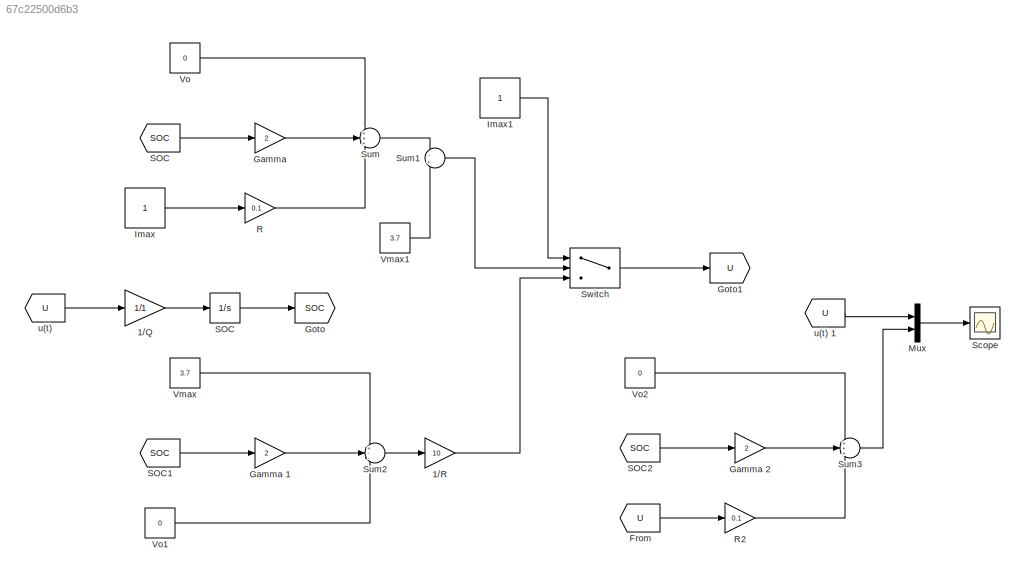
MODEL slx_67c22500d6b3
KIND model
CONFIG AbsTol = auto
CONFIG EnableMultiTasking = off
CONFIG FixedStep = 0.01
CONFIG MaxStep = 0.01
CONFIG MinStep = 0.01
CONFIG RelTol = 1e-3
CONFIG SampleTimeConstraint = Unconstrained
CONFIG Solver = FixedStepAuto
CONFIG SolverName = FixedStepAuto
CONFIG StartTime = 0.0
CONFIG StopTime = 10.0
BLOCK [Gain] 1//Q
  Gain = 1/1
  OutDataTypeStr = Inherit: Inherit via internal rule
  ParamDataTypeStr = Inherit: Inherit via internal rule
  SaturateOnIntegerOverflow = off
BLOCK [Gain] 1//R 
  Gain = 10
  OutDataTypeStr = Inherit: Inherit via internal rule
  ParamDataTypeStr = Inherit: Inherit via internal rule
  SaturateOnIntegerOverflow = off
BLOCK [From] From
  GotoTag = U
BLOCK [Gain] Gamma 
  Gain = 2
  OutDataTypeStr = Inherit: Inherit via internal rule
  ParamDataTypeStr = Inherit: Inherit via internal rule
  SaturateOnIntegerOverflow = off
BLOCK [Gain] Gamma 1
  Gain = 2
  OutDataTypeStr = Inherit: Inherit via internal rule
  ParamDataTypeStr = Inherit: Inherit via internal rule
  SaturateOnIntegerOverflow = off
BLOCK [Gain] Gamma 2
  Gain = 2
  OutDataTypeStr = Inherit: Inherit via internal rule
  ParamDataTypeStr = Inherit: Inherit via internal rule
  SaturateOnIntegerOverflow = off
BLOCK [Goto] Goto
  GotoTag = SOC
BLOCK [Goto] Goto1
  GotoTag = U
BLOCK [Constant] Imax
BLOCK [Constant] Imax1
BLOCK [Mux] Mux
  DisplayOption = bar
  Inputs = 2
  Ports = [2, 1]
BLOCK [Gain] R
  Gain = 0.1
  OutDataTypeStr = Inherit: Inherit via internal rule
  ParamDataTypeStr = Inherit: Inherit via internal rule
  SaturateOnIntegerOverflow = off
BLOCK [Gain] R2
  Gain = 0.1
  OutDataTypeStr = Inherit: Inherit via internal rule
  ParamDataTypeStr = Inherit: Inherit via internal rule
  SaturateOnIntegerOverflow = off
BLOCK [From] SOC
  GotoTag = SOC
BLOCK [Integrator] SOC 
  Ports = [1, 1]
BLOCK [From] SOC1
  GotoTag = SOC
BLOCK [From] SOC2
  GotoTag = SOC
BLOCK [Scope] Scope
  Floating = off
  NumInputPorts = 1
  Ports = [1]
  ScopeSpecificationString = Simulink.scopes.TimeScopeBlockCfg('CurrentConfiguration', extmgr.ConfigurationSet(extmgr.Configuration('Core','General UI',true),extmgr.Configuration('Core','Source UI',true),extmgr.Configuration('Sources','WiredSimulink',true),extmgr.Configuration('Visuals','Time Domain',true,'SerializedDisplays',{struct('MinYLimReal','-0.4625','MaxYLimReal','4.1625','YLabelReal','','MinYLimMag','0.00000','MaxYLi...<+1327ch>
BLOCK [Sum] Sum
  IconShape = round
  InputSameDT = off
  Inputs = +++
  OutDataTypeStr = Inherit: Inherit via internal rule
  Ports = [3, 1]
  SaturateOnIntegerOverflow = off
BLOCK [Sum] Sum1
  IconShape = round
  InputSameDT = off
  Inputs = -+
  OutDataTypeStr = Inherit: Inherit via internal rule
  Ports = [2, 1]
  SaturateOnIntegerOverflow = off
BLOCK [Sum] Sum2
  IconShape = round
  InputSameDT = off
  Inputs = +--
  OutDataTypeStr = Inherit: Inherit via internal rule
  Ports = [3, 1]
  SaturateOnIntegerOverflow = off
BLOCK [Sum] Sum3
  IconShape = round
  InputSameDT = off
  Inputs = +++
  OutDataTypeStr = Inherit: Inherit via internal rule
  Ports = [3, 1]
  SaturateOnIntegerOverflow = off
BLOCK [Switch] Switch
  InputSameDT = off
  SaturateOnIntegerOverflow = off
BLOCK [Constant] Vmax
  Value = 3.7
BLOCK [Constant] Vmax1 
  Value = 3.7
BLOCK [Constant] Vo
  Value = 0
BLOCK [Constant] Vo1
  Value = 0
BLOCK [Constant] Vo2
  Value = 0
BLOCK [From] u(t) 
  GotoTag = U
BLOCK [From] u(t) 1
  GotoTag = U
LINE 1//Q:1 -> SOC :1
LINE 1//R :1 -> Switch:3
LINE From:1 -> R2:1
LINE Gamma 1:1 -> Sum2:2
LINE Gamma 2:1 -> Sum3:2
LINE Gamma :1 -> Sum:2
LINE Imax1:1 -> Switch:1
LINE Imax:1 -> R:1
LINE Mux:1 -> Scope:1
LINE R2:1 -> Sum3:3
LINE R:1 -> Sum:3
LINE SOC :1 -> Goto:1
LINE SOC1:1 -> Gamma 1:1
LINE SOC2:1 -> Gamma 2:1
LINE SOC:1 -> Gamma :1
LINE Sum1:1 -> Switch:2
LINE Sum2:1 -> 1//R :1
LINE Sum3:1 -> Mux:2
LINE Sum:1 -> Sum1:1
LINE Switch:1 -> Goto1:1
LINE Vmax1 :1 -> Sum1:2
LINE Vmax:1 -> Sum2:1
LINE Vo1:1 -> Sum2:3
LINE Vo2:1 -> Sum3:1
LINE Vo:1 -> Sum:1
LINE u(t) 1:1 -> Mux:1
LINE u(t) :1 -> 1//Q:1
